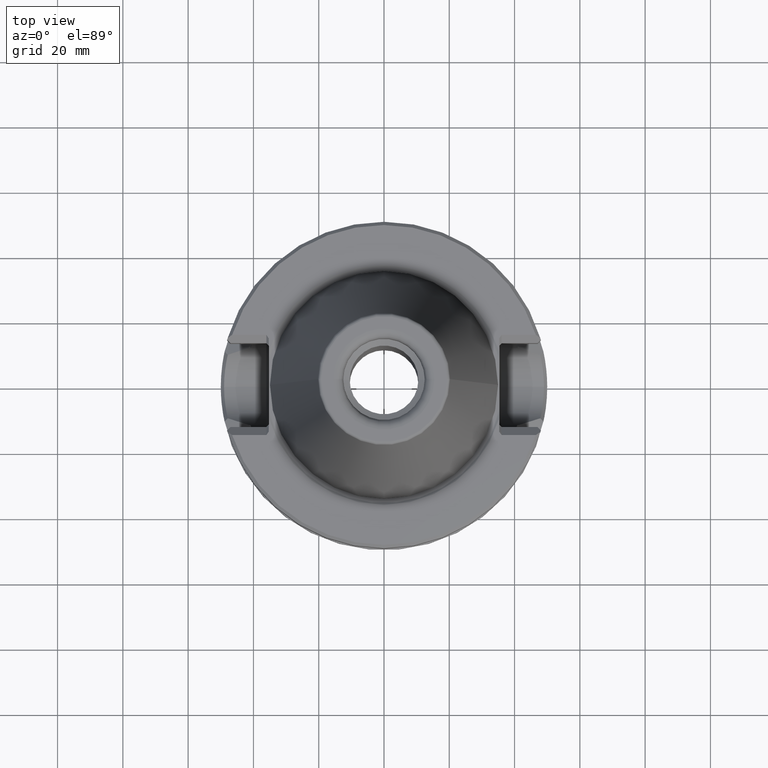
[diagram: clean part render]
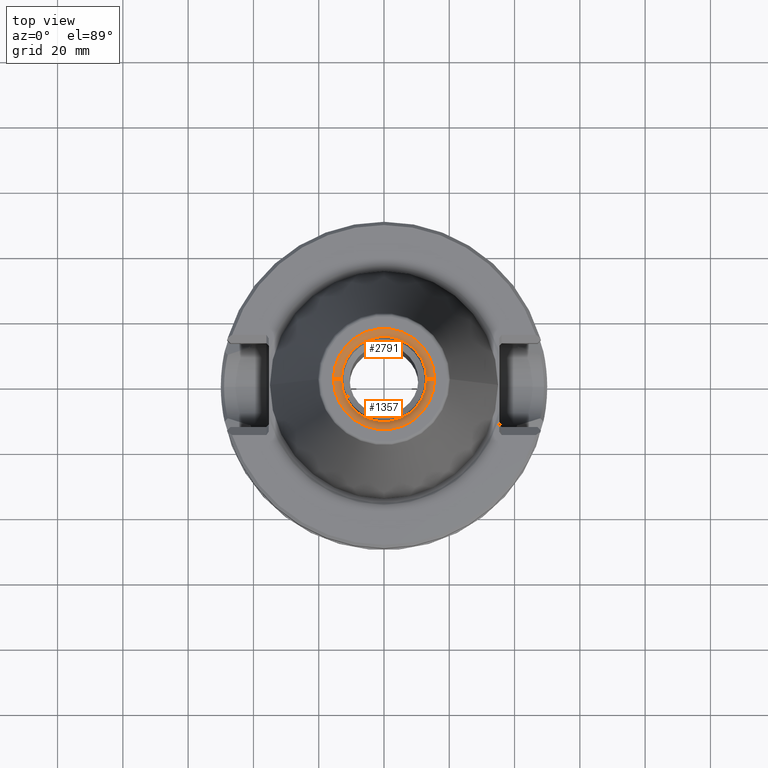
[diagram: same view with one multi-face feature highlighted, each face labeled with its STEP entity id]
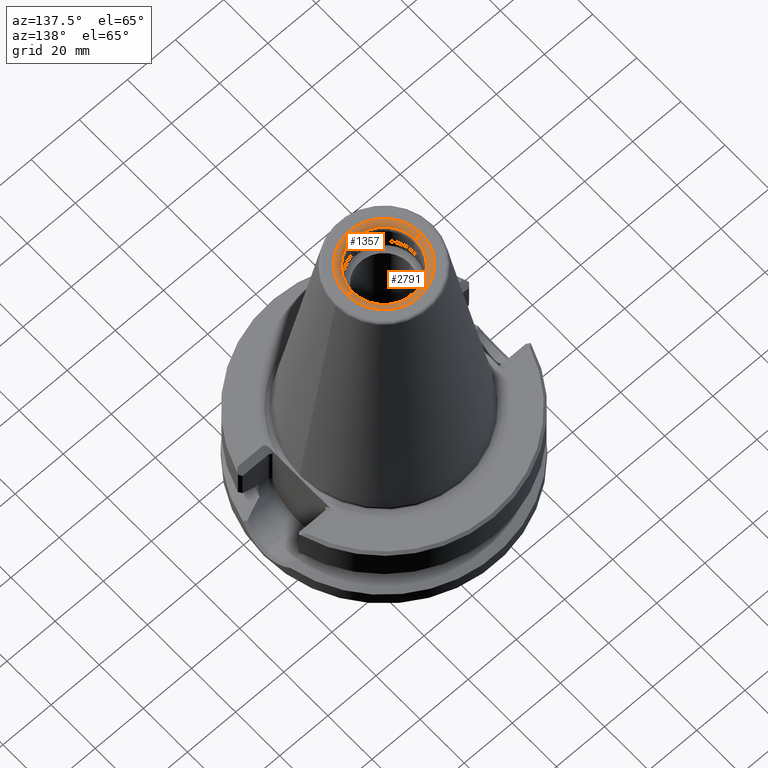
[diagram: same view with one multi-face feature highlighted, each face labeled with its STEP entity id]
A machine part, top view. The highlighted faces form ONE feature: a constant-radius fillet chain: 2 tangent blend faces with common blend radius 3 mm. The faces share edges in the B-rep.
A second angle (auxiliary view) of the same feature is appended — it is thin or edge-on in the first view.
Their STEP definitions:
[1] entity #1357 (Torus):
#1339=EDGE_CURVE('NONE',#3511,#2067,#3807,.T.);
#1345=EDGE_CURVE('NONE',#2621,#1637,#3813,.T.);
#1357=ADVANCED_FACE('NONE',(#3828),#3829,.T.);
#1537=EDGE_CURVE('NONE',#1637,#2067,#4025,.T.);
#1637=VERTEX_POINT('NONE',#4131);
#1805=EDGE_CURVE('NONE',#2621,#3511,#4326,.T.);
#2067=VERTEX_POINT('NONE',#4615);
#2621=VERTEX_POINT('NONE',#5229);
#3511=VERTEX_POINT('NONE',#6221);
#3807=CIRCLE('',#6584,13.0583174591003);
#3813=CIRCLE('',#6593,15.5);
#3828=FACE_OUTER_BOUND('',#6610,.T.);
#3829=TOROIDAL_SURFACE('',#6611,15.5,3.0);
#4025=CIRCLE('',#6945,2.99999999999999);
#4131=CARTESIAN_POINT('',(15.5,1.08166266508412E-014,101.8));
#4326=CIRCLE('',#7431,2.99999999999999);
#4615=CARTESIAN_POINT('',(13.0583174591003,1.08091420945464E-014,100.543039405597));
#5229=CARTESIAN_POINT('',(-15.5,1.27148291895196E-014,101.8));
#6221=CARTESIAN_POINT('',(-13.0583174591003,1.25578346978125E-014,100.543039405597));
#6584=AXIS2_PLACEMENT_3D('',#11562,#11563,#11564);
#6593=AXIS2_PLACEMENT_3D('',#11571,#11572,#11573);
#6610=EDGE_LOOP('',(#11600,#11601,#11602,#11603));
#6611=AXIS2_PLACEMENT_3D('',#11604,#11605,#11606);
#6945=AXIS2_PLACEMENT_3D('',#11807,#11808,#11809);
#7431=AXIS2_PLACEMENT_3D('',#12179,#12180,#12181);
#11562=CARTESIAN_POINT('',(-1.39531496642361E-015,1.25578346978125E-014,100.543039405597));
#11563=DIRECTION('',(-1.38777878078145E-017,1.2490009027033E-016,1.0));
#11564=DIRECTION('',(-1.0,-1.54074395550979E-032,-1.38777878078145E-017));
#11571=CARTESIAN_POINT('',(-1.41275879883551E-015,1.27148291895196E-014,101.8));
#11572=DIRECTION('',(-1.38777878078145E-017,1.2490009027033E-016,1.0));
#11573=DIRECTION('',(0.0,1.0,-1.2490009027033E-016));
#11600=ORIENTED_EDGE('',*,*,#1345,.T.);
#11601=ORIENTED_EDGE('',*,*,#1537,.T.);
#11602=ORIENTED_EDGE('',*,*,#1339,.F.);
#11603=ORIENTED_EDGE('',*,*,#1805,.F.);
#11604=CARTESIAN_POINT('',(-1.37112543541207E-015,1.23401289187086E-014,98.8));
#11605=DIRECTION('',(-1.38777878078145E-017,1.2490009027033E-016,1.0));
#11606=DIRECTION('',(-1.0,-1.54074395550979E-032,-1.38777878078145E-017));
#11807=CARTESIAN_POINT('',(15.5,1.04419263800302E-014,98.8));
#11808=DIRECTION('',(-1.22464679914735E-016,-1.0,1.2490009027033E-016));
#11809=DIRECTION('',(-1.0,1.22464679914735E-016,-1.38777878078145E-017));
#12179=CARTESIAN_POINT('',(-15.5,1.23401289187086E-014,98.8));
#12180=DIRECTION('',(-1.36741026051494E-032,1.0,-1.2490009027033E-016));
#12181=DIRECTION('',(1.0,1.54074395550979E-032,1.38777878078144E-017));
[2] entity #2791 (Torus):
#1537=EDGE_CURVE('NONE',#1637,#2067,#4025,.T.);
#1637=VERTEX_POINT('NONE',#4131);
#1805=EDGE_CURVE('NONE',#2621,#3511,#4326,.T.);
#2067=VERTEX_POINT('NONE',#4615);
#2621=VERTEX_POINT('NONE',#5229);
#2791=ADVANCED_FACE('NONE',(#5422),#5423,.T.);
#2975=EDGE_CURVE('NONE',#2067,#3511,#5632,.F.);
#3231=EDGE_CURVE('NONE',#1637,#2621,#5916,.T.);
#3511=VERTEX_POINT('NONE',#6221);
#4025=CIRCLE('',#6945,2.99999999999999);
#4131=CARTESIAN_POINT('',(15.5,1.08166266508412E-014,101.8));
#4326=CIRCLE('',#7431,2.99999999999999);
#4615=CARTESIAN_POINT('',(13.0583174591003,1.08091420945464E-014,100.543039405597));
#5229=CARTESIAN_POINT('',(-15.5,1.27148291895196E-014,101.8));
#5422=FACE_OUTER_BOUND('',#9589,.T.);
#5423=TOROIDAL_SURFACE('',#9590,15.5,3.0);
#5632=CIRCLE('',#9930,13.0583174591003);
#5916=CIRCLE('',#10457,15.5);
#6221=CARTESIAN_POINT('',(-13.0583174591003,1.25578346978125E-014,100.543039405597));
#6945=AXIS2_PLACEMENT_3D('',#11807,#11808,#11809);
#7431=AXIS2_PLACEMENT_3D('',#12179,#12180,#12181);
#9589=EDGE_LOOP('',(#13522,#13523,#13524,#13525));
#9590=AXIS2_PLACEMENT_3D('',#13526,#13527,#13528);
#9930=AXIS2_PLACEMENT_3D('',#13813,#13814,#13815);
#10457=AXIS2_PLACEMENT_3D('',#14127,#14128,#14129);
#11807=CARTESIAN_POINT('',(15.5,1.04419263800302E-014,98.8));
#11808=DIRECTION('',(-1.22464679914735E-016,-1.0,1.2490009027033E-016));
#11809=DIRECTION('',(-1.0,1.22464679914735E-016,-1.38777878078145E-017));
#12179=CARTESIAN_POINT('',(-15.5,1.23401289187086E-014,98.8));
#12180=DIRECTION('',(-1.36741026051494E-032,1.0,-1.2490009027033E-016));
#12181=DIRECTION('',(1.0,1.54074395550979E-032,1.38777878078144E-017));
#13522=ORIENTED_EDGE('',*,*,#1537,.F.);
#13523=ORIENTED_EDGE('',*,*,#3231,.T.);
#13524=ORIENTED_EDGE('',*,*,#1805,.T.);
#13525=ORIENTED_EDGE('',*,*,#2975,.F.);
#13526=CARTESIAN_POINT('',(-1.37112543541207E-015,1.23401289187086E-014,98.8));
#13527=DIRECTION('',(-1.38777878078145E-017,1.2490009027033E-016,1.0));
#13528=DIRECTION('',(-1.0,-1.54074395550979E-032,-1.38777878078145E-017));
#13813=CARTESIAN_POINT('',(-1.39531496642361E-015,1.25578346978125E-014,100.543039405597));
#13814=DIRECTION('',(1.38777878078145E-017,-1.2490009027033E-016,-1.0));
#13815=DIRECTION('',(-1.0,-1.54074395550979E-032,-1.38777878078145E-017));
#14127=CARTESIAN_POINT('',(-1.41275879883551E-015,1.27148291895196E-014,101.8));
#14128=DIRECTION('',(-1.38777878078145E-017,1.2490009027033E-016,1.0));
#14129=DIRECTION('',(0.0,1.0,-1.2490009027033E-016));